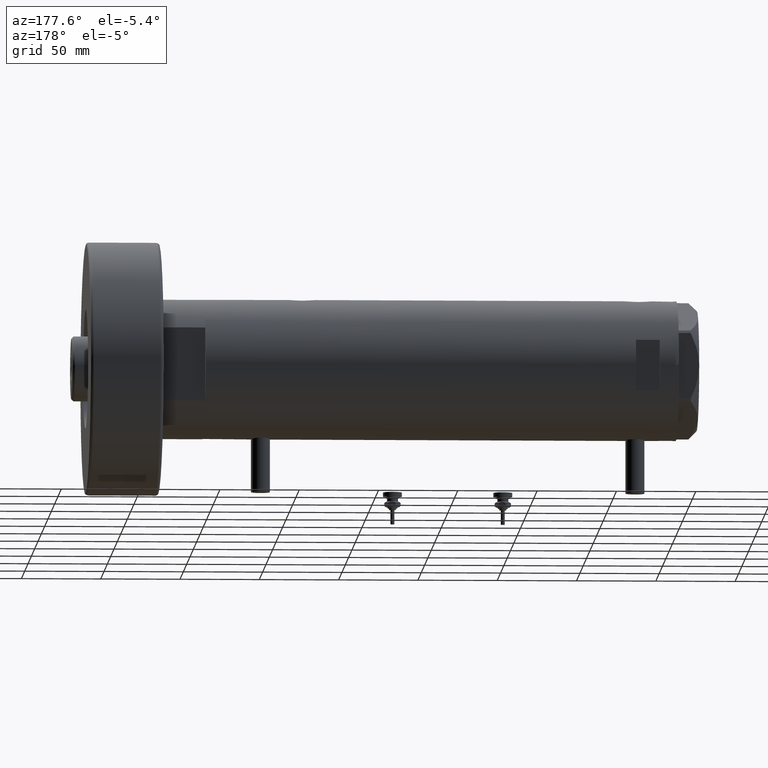
[diagram: clean part render]
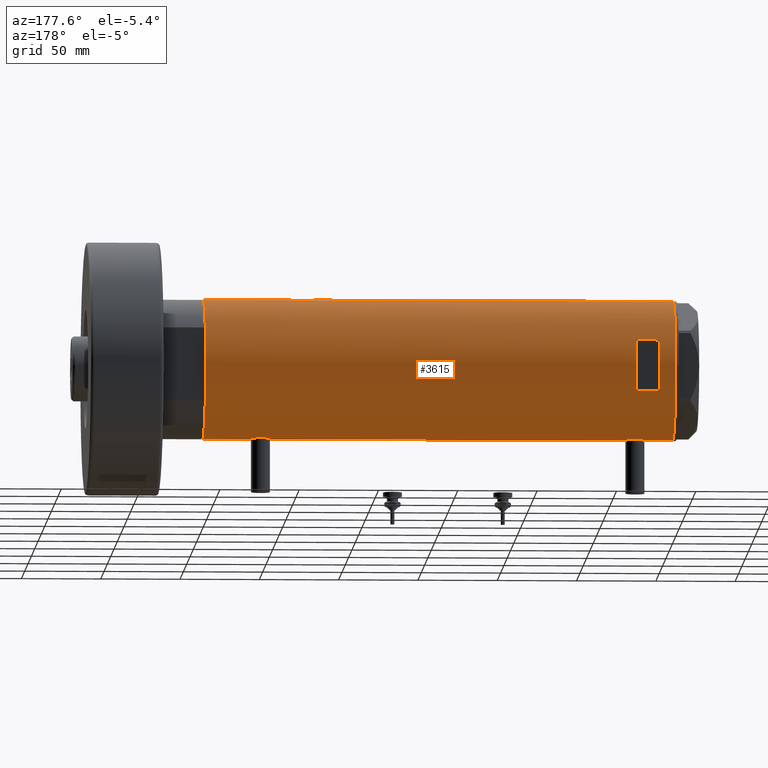
[diagram: same view with one face highlighted and labeled with its STEP entity id]
A machine part, auxiliary view. The second image highlights one B-rep face of the part: STEP entity #3615.
In plain terms, the highlighted cylindrical surface (partial cylindrical patch) has radius 44 mm, axis along (-1, -0, 0).
Its self-contained STEP definition (entity closure, byte-faithful):
#48 = CARTESIAN_POINT ( 'NONE',  ( -43.64133398152736021, 5.607447751852152606, -114.6678604501243512 ) ) ;
#63 = CARTESIAN_POINT ( 'NONE',  ( -43.57657963456318839, 6.089610171536609329, 125.6217853958080894 ) ) ;
#76 = CARTESIAN_POINT ( 'NONE',  ( -43.99413512814552263, 0.8228129877960659311, -118.1090831432582604 ) ) ;
#78 = CARTESIAN_POINT ( 'NONE',  ( 44.00000000000000000, -2.552687571866728611E-15, -96.10000000000000853 ) ) ;
#124 = VERTEX_POINT ( 'NONE', #1070 ) ;
#131 = B_SPLINE_CURVE_WITH_KNOTS ( 'NONE', 3,
 ( #3699, #1826, #1724, #1759, #6146, #1361, #3311, #348, #4241, #820, #792, #2245, #760, #4170, #3763, #4653, #5658, #1236, #2728, #5758, #3219, #5793, #6176, #2277, #314, #252, #2788, #2217, #5168, #5694, #4683, #1268, #3823, #2335, #4202, #2756, #4294, #6245, #6275, #3732, #1859, #6215, #3252, #5200, #1796, #5729, #4710, #3789, #1296, #3281 ),
 .UNSPECIFIED., .F., .F.,
 ( 4, 2, 2, 2, 2, 2, 2, 2, 2, 2, 2, 2, 2, 2, 2, 2, 2, 2, 2, 2, 2, 2, 2, 2, 4 ),
 ( 1.676565531868734773E-18, 0.001960456513248841175, 0.002940684769873264798, 0.003920913026497689288, 0.005881369539746519187, 0.006861597796370934137, 0.007841826052995349086, 0.009802282566244210210, 0.01078251082286863817, 0.01176273907949306613, 0.01274296733611749582, 0.01372319559274192378, 0.01568365210599073981, 0.01764410861923955062, 0.01960456513248837185, 0.02058479338911281889, 0.02156502164573726593, 0.02254524990236171644, 0.02352547815898616002, 0.02548593467223511655, 0.02646616292885961563, 0.02744639118548411472, 0.02940684769873311635, 0.03038707595535761891, 0.03136730421198213187 ),
 .UNSPECIFIED. ) ;
#142 = CARTESIAN_POINT ( 'NONE',  ( -43.55386785759471024, 6.249847571481740971, -111.4894505238204374 ) ) ;
#157 = EDGE_CURVE ( 'NONE', #5611, #1794, #3469, .T. ) ;
#171 = CYLINDRICAL_SURFACE ( 'NONE', #5045, 44.00000000000000000 ) ;
#172 = CARTESIAN_POINT ( 'NONE',  ( -43.67867890111967455, 5.309046579850785541, -115.2042277907602141 ) ) ;
#204 = EDGE_CURVE ( 'NONE', #3201, #2855, #4592, .T. ) ;
#212 = CARTESIAN_POINT ( 'NONE',  ( 42.90786968859020334, 9.742642423712169375, -88.37802296547127412 ) ) ;
#228 = CARTESIAN_POINT ( 'NONE',  ( 44.00000000000000000, -3.917205576288906830E-21, 135.9000000000000341 ) ) ;
#248 = CARTESIAN_POINT ( 'NONE',  ( 43.57657781376908446, 6.094873943596679666, -94.03474301119597101 ) ) ;
#252 = CARTESIAN_POINT ( 'NONE',  ( 42.84850876528984287, 10.00026482975808406, 126.5505830547042621 ) ) ;
#255 = CARTESIAN_POINT ( 'NONE',  ( -43.58221825186232223, 6.049526113783017855, 122.5773702918204293 ) ) ;
#282 = CARTESIAN_POINT ( 'NONE',  ( -43.59867737633044982, 5.931302618788632408, 122.1875050497011301 ) ) ;
#314 = CARTESIAN_POINT ( 'NONE',  ( 42.84863276153905787, 9.999733523508361088, 125.2413009524922245 ) ) ;
#346 = EDGE_CURVE ( 'NONE', #2986, #880, #4062, .T. ) ;
#348 = CARTESIAN_POINT ( 'NONE',  ( 43.77939001959704513, 4.442287752090381403, 116.9169382244084119 ) ) ;
#370 = CARTESIAN_POINT ( 'NONE',  ( 44.00000000000000000, 0.000000000000000000, -148.1999999999999886 ) ) ;
#371 = B_SPLINE_CURVE_WITH_KNOTS ( 'NONE', 3,
 ( #4264, #1823, #3180, #5753, #1792, #1719, #5691, #3249, #3213, #2272, #248, #5196, #788, #2752, #4705, #3695, #1323, #756, #3306, #3759, #847, #4617, #212, #2724, #5725, #1292, #5126, #722, #5734, #829, #3679, #1187, #2672, #4119, #3168, #706, #4635, #5144, #4180, #2709, #4663, #6155, #1251, #771, #5707, #4690, #4216, #1774, #3798, #1437 ),
 .UNSPECIFIED., .F., .F.,
 ( 4, 2, 2, 2, 2, 2, 2, 2, 2, 2, 2, 2, 2, 2, 2, 2, 2, 2, 2, 2, 2, 2, 2, 2, 4 ),
 ( 2.479523669370822448E-18, 0.001960456513248891482, 0.002940684769873340258, 0.003920913026497789035, 0.005881369539746669241, 0.006861597796371108476, 0.007841826052995546845, 0.009802282566244456541, 0.01078251082286890879, 0.01176273907949335930, 0.01274296733611781154, 0.01372319559274226206, 0.01568365210599112838, 0.01764410861923999124, 0.01960456513248885757, 0.02058479338911329073, 0.02156502164573771696, 0.02254524990236214665, 0.02352547815898657982, 0.02548593467223546696, 0.02646616292885991054, 0.02744639118548435758, 0.02940684769873324472, 0.03038707595535769176, 0.03136730421198213881 ),
 .UNSPECIFIED. ) ;
#386 = CARTESIAN_POINT ( 'NONE',  ( -43.83593455218809964, 3.811409182021288533, 129.1701492770350228 ) ) ;
#458 = CARTESIAN_POINT ( 'NONE',  ( -44.00000000000000000, 5.388445781982983516E-15, 117.9500000000000028 ) ) ;
#523 = CARTESIAN_POINT ( 'NONE',  ( -43.59995593514495482, 5.920088975424567579, 126.2141790869178379 ) ) ;
#581 = CARTESIAN_POINT ( 'NONE',  ( -43.55963022497230952, 6.210088036293396563, 125.0164616301742484 ) ) ;
#585 = CARTESIAN_POINT ( 'NONE',  ( 0.000000000000000000, 0.000000000000000000, -148.1999999999999886 ) ) ;
#595 = CARTESIAN_POINT ( 'NONE',  ( -43.87596296923810968, 3.305851531861728976, -117.2080358587625994 ) ) ;
#639 = DIRECTION ( 'NONE',  ( -0.000000000000000000, -0.000000000000000000, -1.000000000000000000 ) ) ;
#645 = CARTESIAN_POINT ( 'NONE',  ( -43.71901936021024682, 4.969830049220625767, 120.3883236230112743 ) ) ;
#706 = CARTESIAN_POINT ( 'NONE',  ( 43.35257020184193522, 7.523219862841656003, -79.50397445915866967 ) ) ;
#722 = CARTESIAN_POINT ( 'NONE',  ( 42.92259096922160921, 9.678247830257127760, -83.49994006971209615 ) ) ;
#755 = DIRECTION ( 'NONE',  ( 0.000000000000000000, 0.000000000000000000, 1.000000000000000000 ) ) ;
#756 = CARTESIAN_POINT ( 'NONE',  ( 43.07598348983507464, 8.971306953823010133, -90.52969423187184361 ) ) ;
#760 = CARTESIAN_POINT ( 'NONE',  ( 43.46520118248736253, 6.843279251446918288, 118.6010167278784024 ) ) ;
#771 = CARTESIAN_POINT ( 'NONE',  ( 43.88561577393361546, 3.228056721358708803, -76.61278334272179791 ) ) ;
#788 = CARTESIAN_POINT ( 'NONE',  ( 43.46520118248735542, 6.843279251446915623, -93.39898327212165441 ) ) ;
#792 = CARTESIAN_POINT ( 'NONE',  ( 43.57657781376909156, 6.094873943596689436, 117.9652569888040858 ) ) ;
#795 = CARTESIAN_POINT ( 'NONE',  ( -43.97181775256599678, 1.624866278047412349, 118.1510708161490442 ) ) ;
#820 = CARTESIAN_POINT ( 'NONE',  ( 43.61291203895921598, 5.829986172017925128, 117.7687128921317452 ) ) ;
#829 = CARTESIAN_POINT ( 'NONE',  ( 43.04652664061920575, 9.111152824375425396, -81.96541990785412679 ) ) ;
#847 = CARTESIAN_POINT ( 'NONE',  ( 42.96879251999280314, 9.470609476412112926, -89.32722899941057904 ) ) ;
#861 = CARTESIAN_POINT ( 'NONE',  ( -43.97068415157984589, 1.617901284326944689, 130.2404512830004251 ) ) ;
#880 = VERTEX_POINT ( 'NONE', #1247 ) ;
#931 = ORIENTED_EDGE ( 'NONE', *, *, #4191, .F. ) ;
#976 = EDGE_CURVE ( 'NONE', #5998, #3330, #371, .T. ) ;
#1010 = CARTESIAN_POINT ( 'NONE',  ( -43.61859254253774054, 5.782454868881351295, -109.5021359910553542 ) ) ;
#1065 = EDGE_CURVE ( 'NONE', #3330, #2882, #4412, .T. ) ;
#1070 = CARTESIAN_POINT ( 'NONE',  ( 15.96871942267132027, 40.99999999999999289, 123.1999999999999886 ) ) ;
#1079 = CARTESIAN_POINT ( 'NONE',  ( -43.58221825186232223, 6.049526113783018744, -113.5226297081795650 ) ) ;
#1084 = CARTESIAN_POINT ( 'NONE',  ( 0.000000000000000000, 0.000000000000000000, 138.1999999999999886 ) ) ;
#1104 = CARTESIAN_POINT ( 'NONE',  ( -43.59995593514495482, 5.920088975424566691, -109.8858209130821848 ) ) ;
#1123 = CARTESIAN_POINT ( 'NONE',  ( -44.00000000000000000, 5.388445916248353619E-15, -148.1999999999999886 ) ) ;
#1140 = VECTOR ( 'NONE', #6062, 1000.000000000000000 ) ;
#1146 = CARTESIAN_POINT ( 'NONE',  ( -43.87596296923809547, 3.305851531861729420, 118.8919641412373522 ) ) ;
#1161 = FACE_OUTER_BOUND ( 'NONE', #4409, .T. ) ;
#1177 = CARTESIAN_POINT ( 'NONE',  ( -43.88883895882798925, 3.130924084324100409, 118.7868754425185216 ) ) ;
#1187 = CARTESIAN_POINT ( 'NONE',  ( 43.13962074468734897, 8.660138848900672315, -81.08910258836064600 ) ) ;
#1207 = CARTESIAN_POINT ( 'NONE',  ( -43.83576802966639008, 3.813209221108460500, 119.2313450964529125 ) ) ;
#1234 = ORIENTED_EDGE ( 'NONE', *, *, #3103, .F. ) ;
#1236 = CARTESIAN_POINT ( 'NONE',  ( 43.07598348983508174, 8.971306953823004804, 121.4703057681281138 ) ) ;
#1245 = VECTOR ( 'NONE', #5311, 1000.000000000000000 ) ;
#1247 = CARTESIAN_POINT ( 'NONE',  ( -44.00000000000000000, 5.388445781982983516E-15, 117.9500000000000028 ) ) ;
#1251 = CARTESIAN_POINT ( 'NONE',  ( 43.80640706382533978, 4.134078575915388853, -76.98867178437912173 ) ) ;
#1268 = CARTESIAN_POINT ( 'NONE',  ( 43.13962074468733476, 8.660138848900681197, 130.9108974116393540 ) ) ;
#1288 = CARTESIAN_POINT ( 'NONE',  ( -44.00000000000000000, 5.388445916248353619E-15, 148.1999999999999886 ) ) ;
#1292 = CARTESIAN_POINT ( 'NONE',  ( 42.84850876528984287, 10.00026482975807873, -85.44941694529576637 ) ) ;
#1296 = CARTESIAN_POINT ( 'NONE',  ( 44.00000000000001421, 0.3269372501759423844, 135.9000000000000625 ) ) ;
#1323 = CARTESIAN_POINT ( 'NONE',  ( 43.13897484505559987, 8.663345277311670145, -91.10529600060513644 ) ) ;
#1361 = CARTESIAN_POINT ( 'NONE',  ( 43.88297407487989688, 3.222431612395376455, 116.4277179797065997 ) ) ;
#1387 = CARTESIAN_POINT ( 'NONE',  ( -44.00000000000000000, 4.742435893011557518E-16, -105.6499999999999915 ) ) ;
#1400 = CARTESIAN_POINT ( 'NONE',  ( -44.00000000000000711, 0.4081702738789175222, 117.9500000000000313 ) ) ;
#1428 = EDGE_CURVE ( 'NONE', #1471, #124, #4589, .T. ) ;
#1437 = CARTESIAN_POINT ( 'NONE',  ( 44.00000000000000000, -3.917104602093038540E-21, -76.10000000000000853 ) ) ;
#1460 = ORIENTED_EDGE ( 'NONE', *, *, #1428, .F. ) ;
#1471 = VERTEX_POINT ( 'NONE', #2127 ) ;
#1473 = ORIENTED_EDGE ( 'NONE', *, *, #5532, .T. ) ;
#1488 = DIRECTION ( 'NONE',  ( 0.000000000000000000, 0.000000000000000000, 1.000000000000000000 ) ) ;
#1515 = LINE ( 'NONE', #2429, #2482 ) ;
#1535 = CARTESIAN_POINT ( 'NONE',  ( -43.67863969133946966, 5.309394106110044476, 127.5037929650255109 ) ) ;
#1552 = CARTESIAN_POINT ( 'NONE',  ( -43.91413175532567692, 2.773555030353453965, -106.2841576163325925 ) ) ;
#1562 = EDGE_CURVE ( 'NONE', #2882, #5611, #131, .T. ) ;
#1569 = EDGE_CURVE ( 'NONE', #3201, #880, #5228, .T. ) ;
#1605 = EDGE_CURVE ( 'NONE', #2324, #2855, #3442, .T. ) ;
#1615 = CARTESIAN_POINT ( 'NONE',  ( -44.00000000000000000, 5.388445916248353619E-15, -148.1999999999999886 ) ) ;
#1653 = CARTESIAN_POINT ( 'NONE',  ( -43.74805001749254529, 4.711035428619386956, -116.0277606412579985 ) ) ;
#1719 = CARTESIAN_POINT ( 'NONE',  ( 43.88297407487990398, 3.222431612395379119, -95.57228202029342867 ) ) ;
#1724 = CARTESIAN_POINT ( 'NONE',  ( 43.98503110884230694, 1.314607393679875225, 115.9652901565444694 ) ) ;
#1733 = VECTOR ( 'NONE', #639, 1000.000000000000000 ) ;
#1759 = CARTESIAN_POINT ( 'NONE',  ( 43.94229162222109863, 2.275476993733910547, 116.1568553577769620 ) ) ;
#1763 = CARTESIAN_POINT ( 'NONE',  ( -43.91315028150558675, 2.769134003554747370, 118.5931738062459573 ) ) ;
#1774 = CARTESIAN_POINT ( 'NONE',  ( 43.99635668041006653, 0.6544833911834552209, -76.11599291522472299 ) ) ;
#1792 = CARTESIAN_POINT ( 'NONE',  ( 43.92466059386730137, 2.593004216484783964, -95.76356669671355348 ) ) ;
#1794 = VERTEX_POINT ( 'NONE', #5984 ) ;
#1796 = CARTESIAN_POINT ( 'NONE',  ( 43.92756755766648524, 2.604528169608123722, 135.5771341190234409 ) ) ;
#1806 = CARTESIAN_POINT ( 'NONE',  ( -43.94507179847653333, 2.206027755801685863, 130.0513152228180047 ) ) ;
#1823 = CARTESIAN_POINT ( 'NONE',  ( 44.00000000000001421, 0.6630566900259825536, -96.09999999999998010 ) ) ;
#1826 = CARTESIAN_POINT ( 'NONE',  ( 44.00000000000001421, 0.6630566900259826646, 115.9000000000000483 ) ) ;
#1845 = DIRECTION ( 'NONE',  ( 0.000000000000000000, 0.000000000000000000, 1.000000000000000000 ) ) ;
#1859 = CARTESIAN_POINT ( 'NONE',  ( 43.71454618729809738, 5.012329428678965471, 134.5593697405831222 ) ) ;
#1954 = LINE ( 'NONE', #3364, #1245 ) ;
#1960 = ORIENTED_EDGE ( 'NONE', *, *, #6231, .F. ) ;
#1965 = CARTESIAN_POINT ( 'NONE',  ( -44.00000000000000000, 3.205170455528113082E-15, 130.4500000000000171 ) ) ;
#1981 = VERTEX_POINT ( 'NONE', #1288 ) ;
#2024 = CARTESIAN_POINT ( 'NONE',  ( -43.83576802966640429, 3.813209221108459168, -116.8686549035471103 ) ) ;
#2049 = CARTESIAN_POINT ( 'NONE',  ( -43.55963022497231663, 6.210088036293396563, -111.0835383698257601 ) ) ;
#2070 = DIRECTION ( 'NONE',  ( 0.000000000000000000, 0.000000000000000000, 1.000000000000000000 ) ) ;
#2076 = AXIS2_PLACEMENT_3D ( 'NONE', #5160, #755, #2239 ) ;
#2079 = CARTESIAN_POINT ( 'NONE',  ( -43.62981559643959883, 5.696090409300652802, -114.4805136541452271 ) ) ;
#2096 = CARTESIAN_POINT ( 'NONE',  ( 15.96871942267132027, 40.99999999999999289, -148.1999999999999886 ) ) ;
#2113 = CARTESIAN_POINT ( 'NONE',  ( -43.95549163632549750, 2.014511215452027937, -117.8305895570497768 ) ) ;
#2127 = CARTESIAN_POINT ( 'NONE',  ( 15.96871942267132027, 40.99999999999999289, 138.1999999999999886 ) ) ;
#2144 = CARTESIAN_POINT ( 'NONE',  ( -43.71938389712227746, 4.966728892888062852, -108.0838554765912960 ) ) ;
#2148 = CARTESIAN_POINT ( 'NONE',  ( -15.96871942267132027, 40.99999999999999289, 123.1999999999999886 ) ) ;
#2154 = CARTESIAN_POINT ( 'NONE',  ( -43.66575107734167460, 5.414026674167574882, 121.0706491196229848 ) ) ;
#2164 = ORIENTED_EDGE ( 'NONE', *, *, #204, .F. ) ;
#2184 = CARTESIAN_POINT ( 'NONE',  ( -43.55382423478828713, 6.250151562062088217, 123.7941047051266281 ) ) ;
#2215 = ORIENTED_EDGE ( 'NONE', *, *, #3388, .F. ) ;
#2217 = CARTESIAN_POINT ( 'NONE',  ( 42.92259096922159500, 9.678247830257124207, 128.5000599302879323 ) ) ;
#2239 = DIRECTION ( 'NONE',  ( 1.000000000000000000, 0.000000000000000000, 0.000000000000000000 ) ) ;
#2245 = CARTESIAN_POINT ( 'NONE',  ( 43.50265731352003939, 6.601850423195601003, 118.3818083270105177 ) ) ;
#2272 = CARTESIAN_POINT ( 'NONE',  ( 43.61291203895921598, 5.829986172017927792, -94.23128710786834006 ) ) ;
#2277 = CARTESIAN_POINT ( 'NONE',  ( 42.86370458161098185, 9.935807968041567406, 124.5909544957013253 ) ) ;
#2324 = VERTEX_POINT ( 'NONE', #1615 ) ;
#2335 = CARTESIAN_POINT ( 'NONE',  ( 43.24261242176996234, 8.130827601038818742, 131.7305518685417383 ) ) ;
#2380 = CIRCLE ( 'NONE', #5994, 44.00000000000000000 ) ;
#2386 = AXIS2_PLACEMENT_3D ( 'NONE', #3195, #2734, #5205 ) ;
#2397 = ORIENTED_EDGE ( 'NONE', *, *, #1065, .F. ) ;
#2429 = CARTESIAN_POINT ( 'NONE',  ( -15.96871942267132027, 40.99999999999999289, -148.1999999999999886 ) ) ;
#2482 = VECTOR ( 'NONE', #1488, 1000.000000000000000 ) ;
#2500 = CARTESIAN_POINT ( 'NONE',  ( -43.74833112883977293, 4.708208586952001617, -107.7694961649112457 ) ) ;
#2532 = CARTESIAN_POINT ( 'NONE',  ( -43.83593455218809254, 3.811409182021277431, -106.9298507229649857 ) ) ;
#2557 = CARTESIAN_POINT ( 'NONE',  ( -43.80687348212602217, 4.128385987736833407, -116.6104874331096255 ) ) ;
#2572 = CARTESIAN_POINT ( 'NONE',  ( -43.64122538274736485, 5.608286354294323317, 126.9661138696334177 ) ) ;
#2589 = CARTESIAN_POINT ( 'NONE',  ( -43.99999999999997158, 0.4081702738789203533, -118.1499999999999631 ) ) ;
#2608 = CARTESIAN_POINT ( 'NONE',  ( -43.80687348212601506, 4.128385987736831630, 119.4895125668903830 ) ) ;
#2636 = CARTESIAN_POINT ( 'NONE',  ( -43.55973179376101001, 6.209370339246233605, 123.3793823294013379 ) ) ;
#2672 = CARTESIAN_POINT ( 'NONE',  ( 43.17306590853065984, 8.492365194390513849, -80.80987467306545113 ) ) ;
#2709 = CARTESIAN_POINT ( 'NONE',  ( 43.68141895191830315, 5.292250119194731539, -77.60895047714808470 ) ) ;
#2724 = CARTESIAN_POINT ( 'NONE',  ( 42.86370458161097474, 9.935807968041563853, -87.40904550429864628 ) ) ;
#2728 = CARTESIAN_POINT ( 'NONE',  ( 43.04663170950396278, 9.110642017076083121, 121.7645249780961052 ) ) ;
#2734 = DIRECTION ( 'NONE',  ( -0.000000000000000000, -0.000000000000000000, 1.000000000000000000 ) ) ;
#2752 = CARTESIAN_POINT ( 'NONE',  ( 43.35294442506072699, 7.532526048221049209, -92.70935414491108872 ) ) ;
#2756 = CARTESIAN_POINT ( 'NONE',  ( 43.35257020184193522, 7.523219862841646233, 132.4960255408413730 ) ) ;
#2788 = CARTESIAN_POINT ( 'NONE',  ( 42.86396777580259965, 9.934664719553397916, 127.2157619902652357 ) ) ;
#2806 = ORIENTED_EDGE ( 'NONE', *, *, #3298, .F. ) ;
#2850 = ORIENTED_EDGE ( 'NONE', *, *, #1569, .T. ) ;
#2855 = VERTEX_POINT ( 'NONE', #6184 ) ;
#2879 = CARTESIAN_POINT ( 'NONE',  ( -43.97068415157983878, 1.617901284326946909, -105.8595487169995266 ) ) ;
#2882 = VERTEX_POINT ( 'NONE', #3228 ) ;
#2981 = CARTESIAN_POINT ( 'NONE',  ( -43.59867737633045692, 5.931302618788633296, -113.9124949502988926 ) ) ;
#2986 = VERTEX_POINT ( 'NONE', #1965 ) ;
#3000 = CARTESIAN_POINT ( 'NONE',  ( -43.58362292239463187, 6.039157555656599285, 125.8226357844804681 ) ) ;
#3017 = CARTESIAN_POINT ( 'NONE',  ( -43.94507179847653333, 2.206027755801677870, -106.0486847771820322 ) ) ;
#3049 = CARTESIAN_POINT ( 'NONE',  ( -43.64122538274737195, 5.608286354294323317, -109.1338861303666192 ) ) ;
#3078 = CARTESIAN_POINT ( 'NONE',  ( -43.88883895882799635, 3.130924084324101297, -117.3131245574814727 ) ) ;
#3083 = DIRECTION ( 'NONE',  ( -0.000000000000000000, -0.000000000000000000, -1.000000000000000000 ) ) ;
#3103 = EDGE_CURVE ( 'NONE', #3921, #1471, #5454, .T. ) ;
#3159 = CARTESIAN_POINT ( 'NONE',  ( -43.95549163632550460, 2.014511215452026160, 118.2694104429502460 ) ) ;
#3160 = VERTEX_POINT ( 'NONE', #2148 ) ;
#3168 = CARTESIAN_POINT ( 'NONE',  ( 43.27871541412905287, 7.937063204555986573, -80.00825002753971660 ) ) ;
#3173 = VECTOR ( 'NONE', #4810, 1000.000000000000000 ) ;
#3180 = CARTESIAN_POINT ( 'NONE',  ( 43.98503110884232115, 1.314607393679875669, -96.03470984345551642 ) ) ;
#3188 = CARTESIAN_POINT ( 'NONE',  ( -43.92459115390705904, 2.581892149020998506, 118.5045417292665491 ) ) ;
#3195 = CARTESIAN_POINT ( 'NONE',  ( 0.000000000000000000, 0.000000000000000000, 123.1999999999999744 ) ) ;
#3201 = VERTEX_POINT ( 'NONE', #4291 ) ;
#3213 = CARTESIAN_POINT ( 'NONE',  ( 43.71659050864931828, 5.015880325000607876, -94.77566825963822339 ) ) ;
#3219 = CARTESIAN_POINT ( 'NONE',  ( 42.96879251999278893, 9.470609476412109373, 122.6727710005894352 ) ) ;
#3222 = CARTESIAN_POINT ( 'NONE',  ( -43.55386785759471735, 6.249847571481741859, 124.6105494761795569 ) ) ;
#3228 = CARTESIAN_POINT ( 'NONE',  ( 44.00000000000000000, -1.726036355082439716E-15, 115.9000000000000199 ) ) ;
#3249 = CARTESIAN_POINT ( 'NONE',  ( 43.77939001959703802, 4.442287752090381403, -95.08306177559161654 ) ) ;
#3252 = CARTESIAN_POINT ( 'NONE',  ( 43.80640706382533267, 4.134078575915394183, 135.0113282156208641 ) ) ;
#3281 = CARTESIAN_POINT ( 'NONE',  ( 44.00000000000000000, -3.917205576288906830E-21, 135.9000000000000341 ) ) ;
#3298 = EDGE_CURVE ( 'NONE', #1794, #1981, #5245, .T. ) ;
#3306 = CARTESIAN_POINT ( 'NONE',  ( 43.04663170950394857, 9.110642017076081345, -90.23547502190392322 ) ) ;
#3311 = CARTESIAN_POINT ( 'NONE',  ( 43.85884410404901246, 3.534688330930383593, 116.5398019124966424 ) ) ;
#3324 = CARTESIAN_POINT ( 'NONE',  ( -43.91413175532566981, 2.773555030353461515, 129.8158423836674729 ) ) ;
#3330 = VERTEX_POINT ( 'NONE', #5221 ) ;
#3346 = DIRECTION ( 'NONE',  ( 0.000000000000000000, 0.000000000000000000, 1.000000000000000000 ) ) ;
#3364 = CARTESIAN_POINT ( 'NONE',  ( 44.00000000000000000, 0.000000000000000000, -148.1999999999999886 ) ) ;
#3369 = CARTESIAN_POINT ( 'NONE',  ( -43.99417607942194763, 0.8200150578638748522, -105.6906332748326207 ) ) ;
#3388 = EDGE_CURVE ( 'NONE', #3160, #3921, #1515, .T. ) ;
#3409 = DIRECTION ( 'NONE',  ( 0.000000000000000000, 0.000000000000000000, 1.000000000000000000 ) ) ;
#3442 = LINE ( 'NONE', #4392, #5543 ) ;
#3469 = LINE ( 'NONE', #370, #3173 ) ;
#3528 = CARTESIAN_POINT ( 'NONE',  ( -43.55382423478827292, 6.250151562062086441, -112.3058952948734088 ) ) ;
#3559 = CARTESIAN_POINT ( 'NONE',  ( -43.88968326835893663, 3.132363423941621150, -106.4762076764352088 ) ) ;
#3615 = ADVANCED_FACE ( 'NONE', ( #4063, #1161 ), #171, .T. ) ;
#3654 = DIRECTION ( 'NONE',  ( 0.000000000000000000, 0.000000000000000000, 1.000000000000000000 ) ) ;
#3679 = CARTESIAN_POINT ( 'NONE',  ( 43.07641822757289418, 8.969229373860567733, -81.66603764209828853 ) ) ;
#3695 = CARTESIAN_POINT ( 'NONE',  ( 43.17277162440355198, 8.493905080221260562, -91.38787035108497037 ) ) ;
#3699 = CARTESIAN_POINT ( 'NONE',  ( 44.00000000000000000, -1.726036355082439716E-15, 115.9000000000000199 ) ) ;
#3732 = CARTESIAN_POINT ( 'NONE',  ( 43.68141895191831736, 5.292250119194742197, 134.3910495228520006 ) ) ;
#3759 = CARTESIAN_POINT ( 'NONE',  ( 42.99303682946561622, 9.360292926890510401, -89.63424220207205906 ) ) ;
#3763 = CARTESIAN_POINT ( 'NONE',  ( 43.27822890220284791, 7.945655169171514487, 119.7927461671070830 ) ) ;
#3789 = CARTESIAN_POINT ( 'NONE',  ( 43.99635668041006653, 0.6544833911834624374, 135.8840070847753623 ) ) ;
#3798 = CARTESIAN_POINT ( 'NONE',  ( 44.00000000000002132, 0.3269372501759363336, -76.10000000000002274 ) ) ;
#3823 = CARTESIAN_POINT ( 'NONE',  ( 43.17306590853067405, 8.492365194390501415, 131.1901253269345773 ) ) ;
#3836 = CARTESIAN_POINT ( 'NONE',  ( -43.80646232387288563, 4.132500855894035929, 128.9064558540335668 ) ) ;
#3904 = ORIENTED_EDGE ( 'NONE', *, *, #1605, .T. ) ;
#3921 = VERTEX_POINT ( 'NONE', #4833 ) ;
#3977 = CARTESIAN_POINT ( 'NONE',  ( -43.92459115390705193, 2.581892149020998950, -117.5954582707334595 ) ) ;
#3996 = LINE ( 'NONE', #1123, #1140 ) ;
#4014 = EDGE_CURVE ( 'NONE', #5635, #2324, #2380, .T. ) ;
#4062 = B_SPLINE_CURVE_WITH_KNOTS ( 'NONE', 3,
 ( #5275, #6356, #4341, #5367, #861, #6324, #1806, #3324, #4794, #386, #3836, #5301, #5839, #1535, #5472, #2572, #5907, #523, #3000, #63, #581, #3222, #2184, #2636, #255, #282, #6051, #5048, #2154, #5568, #645, #6181, #2608, #1207, #1146, #1177, #1763, #3188, #3159, #795, #4752, #1400, #458 ),
 .UNSPECIFIED., .F., .F.,
 ( 4, 2, 2, 2, 2, 2, 2, 2, 1, 2, 2, 2, 2, 2, 2, 2, 2, 2, 2, 2, 2, 4 ),
 ( 3.114226524098576417E-18, 0.001222818171749707637, 0.001834227257624559829, 0.002445636343499412238, 0.003668454515249116622, 0.004891272686998821874, 0.006114090858748525391, 0.006725499944623378884, 0.007336909030498230642, 0.007948318116373082401, 0.008559727202247935027, 0.009782545373997636809, 0.01100536354574729869, 0.01222818171749695884, 0.01283959080337180973, 0.01345099988924666062, 0.01467381806099635894, 0.01589663623274606072, 0.01650804531862090987, 0.01711945440449575903, 0.01834227257624546428, 0.01956509074799516260 ),
 .UNSPECIFIED. ) ;
#4063 = FACE_BOUND ( 'NONE', #6246, .T. ) ;
#4089 = CARTESIAN_POINT ( 'NONE',  ( 0.000000000000000000, 0.000000000000000000, -148.1999999999999886 ) ) ;
#4092 = VECTOR ( 'NONE', #1845, 1000.000000000000000 ) ;
#4109 = AXIS2_PLACEMENT_3D ( 'NONE', #1084, #3083, #5494 ) ;
#4119 = CARTESIAN_POINT ( 'NONE',  ( 43.24261242176995523, 8.130827601038827623, -80.26944813145831858 ) ) ;
#4170 = CARTESIAN_POINT ( 'NONE',  ( 43.35294442506074120, 7.532526048221051873, 119.2906458550888829 ) ) ;
#4180 = CARTESIAN_POINT ( 'NONE',  ( 43.57805684119164624, 6.103282219787162788, -78.15183798352141764 ) ) ;
#4191 = EDGE_CURVE ( 'NONE', #124, #3160, #6202, .T. ) ;
#4202 = CARTESIAN_POINT ( 'NONE',  ( 43.27871541412905287, 7.937063204555979468, 131.9917499724603545 ) ) ;
#4216 = CARTESIAN_POINT ( 'NONE',  ( 43.98169492814104586, 1.310824514239765426, -76.18080219619319848 ) ) ;
#4241 = CARTESIAN_POINT ( 'NONE',  ( 43.71659050864932539, 5.015880325000607876, 117.2243317403618477 ) ) ;
#4264 = CARTESIAN_POINT ( 'NONE',  ( 44.00000000000000000, -2.552687571866728611E-15, -96.10000000000000853 ) ) ;
#4287 = ORIENTED_EDGE ( 'NONE', *, *, #157, .F. ) ;
#4291 = CARTESIAN_POINT ( 'NONE',  ( -44.00000000000000000, 4.742435893011557518E-16, -105.6499999999999915 ) ) ;
#4294 = CARTESIAN_POINT ( 'NONE',  ( 43.39051256276903956, 7.301963662770305064, 132.7402446821294575 ) ) ;
#4341 = CARTESIAN_POINT ( 'NONE',  ( -43.99417607942194763, 0.8200150578638757404, 130.4093667251674162 ) ) ;
#4369 = ORIENTED_EDGE ( 'NONE', *, *, #4014, .T. ) ;
#4392 = CARTESIAN_POINT ( 'NONE',  ( -44.00000000000000000, 5.388445916248353619E-15, -148.1999999999999886 ) ) ;
#4409 = EDGE_LOOP ( 'NONE', ( #4369, #3904, #2164, #2850, #4508, #1473, #2806, #4287, #5140, #2397, #5790, #1960 ) ) ;
#4412 = LINE ( 'NONE', #6261, #4092 ) ;
#4456 = CARTESIAN_POINT ( 'NONE',  ( -43.57657963456318839, 6.089610171536606664, -110.4782146041918622 ) ) ;
#4490 = CARTESIAN_POINT ( 'NONE',  ( -43.67863969133946966, 5.309394106110037370, -108.5962070349745403 ) ) ;
#4508 = ORIENTED_EDGE ( 'NONE', *, *, #346, .F. ) ;
#4578 = CARTESIAN_POINT ( 'NONE',  ( -44.00000000000000000, 5.388445781982983516E-15, -118.1500000000000057 ) ) ;
#4589 = LINE ( 'NONE', #2096, #1733 ) ;
#4592 = B_SPLINE_CURVE_WITH_KNOTS ( 'NONE', 3,
 ( #1387, #6372, #3369, #5315, #2879, #5977, #3017, #1552, #3559, #2532, #4979, #2500, #2144, #4490, #5005, #3049, #1010, #1104, #4941, #4456, #2049, #142, #3528, #5490, #1079, #2981, #2079, #48, #6071, #172, #5452, #1653, #2557, #2024, #595, #3078, #5032, #3977, #2113, #5946, #76, #2589, #4578 ),
 .UNSPECIFIED., .F., .F.,
 ( 4, 2, 2, 2, 2, 2, 2, 2, 1, 2, 2, 2, 2, 2, 2, 2, 2, 2, 2, 2, 2, 4 ),
 ( 4.607873388256435088E-19, 0.001222818171749670340, 0.001834227257624505619, 0.002445636343499341114, 0.003668454515249027284, 0.004891272686998713454, 0.006114090858748398756, 0.006725499944623259188, 0.007336909030498119620, 0.007948318116372978318, 0.008559727202247837882, 0.009782545373997518848, 0.01100536354574719981, 0.01222818171749687904, 0.01283959080337173861, 0.01345099988924659644, 0.01467381806099631383, 0.01589663623274603296, 0.01650804531862088906, 0.01711945440449574862, 0.01834227257624546428, 0.01956509074799517994 ),
 .UNSPECIFIED. ) ;
#4617 = CARTESIAN_POINT ( 'NONE',  ( 42.92624534982630280, 9.661626915142804251, -88.70008004144708025 ) ) ;
#4631 = CARTESIAN_POINT ( 'NONE',  ( 44.00000000000000000, 0.000000000000000000, -148.1999999999999886 ) ) ;
#4635 = CARTESIAN_POINT ( 'NONE',  ( 43.39051256276903246, 7.301963662770312169, -79.25975531787059936 ) ) ;
#4653 = CARTESIAN_POINT ( 'NONE',  ( 43.17277162440354488, 8.493905080221260562, 120.6121296489150723 ) ) ;
#4663 = CARTESIAN_POINT ( 'NONE',  ( 43.71454618729809027, 5.012329428678959253, -77.44063025941690626 ) ) ;
#4683 = CARTESIAN_POINT ( 'NONE',  ( 43.07641822757289418, 8.969229373860580168, 130.3339623579017257 ) ) ;
#4690 = CARTESIAN_POINT ( 'NONE',  ( 43.97062489912107708, 1.639461988184795826, -76.22985373334013559 ) ) ;
#4705 = CARTESIAN_POINT ( 'NONE',  ( 43.27822890220284791, 7.945655169171514487, -92.20725383289293120 ) ) ;
#4710 = CARTESIAN_POINT ( 'NONE',  ( 43.98169492814102455, 1.310824514239774530, 135.8191978038068441 ) ) ;
#4748 = CARTESIAN_POINT ( 'NONE',  ( -44.00000000000000000, 5.388445916248353619E-15, -148.1999999999999886 ) ) ;
#4752 = CARTESIAN_POINT ( 'NONE',  ( -43.99413512814552973, 0.8228129877960675964, 117.9909168567418050 ) ) ;
#4794 = CARTESIAN_POINT ( 'NONE',  ( -43.88968326835894374, 3.132363423941633140, 129.6237923235648282 ) ) ;
#4810 = DIRECTION ( 'NONE',  ( 0.000000000000000000, 0.000000000000000000, 1.000000000000000000 ) ) ;
#4833 = CARTESIAN_POINT ( 'NONE',  ( -15.96871942267132027, 40.99999999999999289, 138.1999999999999886 ) ) ;
#4941 = CARTESIAN_POINT ( 'NONE',  ( -43.58362292239462477, 6.039157555656595733, -110.2773642155195688 ) ) ;
#4979 = CARTESIAN_POINT ( 'NONE',  ( -43.80646232387288563, 4.132500855894024383, -107.1935441459664275 ) ) ;
#4996 = DIRECTION ( 'NONE',  ( 1.000000000000000000, 0.000000000000000000, 0.000000000000000000 ) ) ;
#5005 = CARTESIAN_POINT ( 'NONE',  ( -43.66555354895124452, 5.415612800338318600, -108.7734364282244712 ) ) ;
#5032 = CARTESIAN_POINT ( 'NONE',  ( -43.91315028150560096, 2.769134003554746482, -117.5068261937540370 ) ) ;
#5045 = AXIS2_PLACEMENT_3D ( 'NONE', #4089, #3654, #5613 ) ;
#5048 = CARTESIAN_POINT ( 'NONE',  ( -43.64133398152736021, 5.607447751852150830, 121.4321395498756573 ) ) ;
#5126 = CARTESIAN_POINT ( 'NONE',  ( 42.86396777580259254, 9.934664719553399692, -84.78423800973480695 ) ) ;
#5140 = ORIENTED_EDGE ( 'NONE', *, *, #1562, .F. ) ;
#5144 = CARTESIAN_POINT ( 'NONE',  ( 43.50382207688845426, 6.605942769308308371, -78.56395311161780626 ) ) ;
#5160 = CARTESIAN_POINT ( 'NONE',  ( 0.000000000000000000, 0.000000000000000000, 148.1999999999999886 ) ) ;
#5168 = CARTESIAN_POINT ( 'NONE',  ( 42.96547725528407824, 9.488625330801086832, 129.1245034721107743 ) ) ;
#5196 = CARTESIAN_POINT ( 'NONE',  ( 43.50265731352003939, 6.601850423195591233, -93.61819167298956756 ) ) ;
#5200 = CARTESIAN_POINT ( 'NONE',  ( 43.88561577393363677, 3.228056721358719017, 135.3872166572783158 ) ) ;
#5205 = DIRECTION ( 'NONE',  ( -1.000000000000000000, -8.881784197001252323E-16, 0.000000000000000000 ) ) ;
#5221 = CARTESIAN_POINT ( 'NONE',  ( 44.00000000000000000, -3.917104602093038540E-21, -76.10000000000000853 ) ) ;
#5228 = LINE ( 'NONE', #4748, #5866 ) ;
#5245 = CIRCLE ( 'NONE', #2076, 44.00000000000000000 ) ;
#5275 = CARTESIAN_POINT ( 'NONE',  ( -44.00000000000000000, 3.205170455528113082E-15, 130.4500000000000171 ) ) ;
#5301 = CARTESIAN_POINT ( 'NONE',  ( -43.74833112883975872, 4.708208586952010499, 128.3305038350887060 ) ) ;
#5311 = DIRECTION ( 'NONE',  ( 0.000000000000000000, 0.000000000000000000, 1.000000000000000000 ) ) ;
#5315 = CARTESIAN_POINT ( 'NONE',  ( -43.97754480947185129, 1.419697478855583617, -105.8099672394792066 ) ) ;
#5367 = CARTESIAN_POINT ( 'NONE',  ( -43.97754480947187261, 1.419697478855583839, 130.2900327605207451 ) ) ;
#5452 = CARTESIAN_POINT ( 'NONE',  ( -43.71901936021023971, 4.969830049220626655, -115.7116763769886916 ) ) ;
#5454 = CIRCLE ( 'NONE', #4109, 44.00000000000000000 ) ;
#5472 = CARTESIAN_POINT ( 'NONE',  ( -43.66555354895123742, 5.415612800338316823, 127.3265635717755515 ) ) ;
#5490 = CARTESIAN_POINT ( 'NONE',  ( -43.55973179376100290, 6.209370339246232717, -112.7206176705986849 ) ) ;
#5494 = DIRECTION ( 'NONE',  ( 1.000000000000000000, -8.881784197001252323E-16, 0.000000000000000000 ) ) ;
#5532 = EDGE_CURVE ( 'NONE', #2986, #1981, #3996, .T. ) ;
#5543 = VECTOR ( 'NONE', #3409, 1000.000000000000000 ) ;
#5568 = CARTESIAN_POINT ( 'NONE',  ( -43.67867890111968165, 5.309046579850784653, 120.8957722092397660 ) ) ;
#5611 = VERTEX_POINT ( 'NONE', #228 ) ;
#5613 = DIRECTION ( 'NONE',  ( 1.000000000000000000, 0.000000000000000000, 0.000000000000000000 ) ) ;
#5635 = VERTEX_POINT ( 'NONE', #4631 ) ;
#5658 = CARTESIAN_POINT ( 'NONE',  ( 43.13897484505559277, 8.663345277311664816, 120.8947039993948920 ) ) ;
#5691 = CARTESIAN_POINT ( 'NONE',  ( 43.85884410404901956, 3.534688330930385369, -95.46019808750335756 ) ) ;
#5694 = CARTESIAN_POINT ( 'NONE',  ( 43.04652664061920575, 9.111152824375430725, 130.0345800921458874 ) ) ;
#5707 = CARTESIAN_POINT ( 'NONE',  ( 43.92756755766650656, 2.604528169608118393, -76.42286588097658750 ) ) ;
#5725 = CARTESIAN_POINT ( 'NONE',  ( 42.84863276153905076, 9.999733523508359312, -86.75869904750777550 ) ) ;
#5729 = CARTESIAN_POINT ( 'NONE',  ( 43.97062489912107708, 1.639461988184804486, 135.7701462666599070 ) ) ;
#5734 = CARTESIAN_POINT ( 'NONE',  ( 42.96547725528408535, 9.488625330801085056, -82.87549652788929677 ) ) ;
#5753 = CARTESIAN_POINT ( 'NONE',  ( 43.94229162222109863, 2.275476993733910991, -95.84314464222305219 ) ) ;
#5758 = CARTESIAN_POINT ( 'NONE',  ( 42.99303682946561622, 9.360292926890506848, 122.3657577979279836 ) ) ;
#5790 = ORIENTED_EDGE ( 'NONE', *, *, #976, .F. ) ;
#5793 = CARTESIAN_POINT ( 'NONE',  ( 42.92624534982631701, 9.661626915142806027, 123.2999199585529482 ) ) ;
#5839 = CARTESIAN_POINT ( 'NONE',  ( -43.71938389712227035, 4.966728892888069069, 128.0161445234087125 ) ) ;
#5866 = VECTOR ( 'NONE', #3346, 1000.000000000000000 ) ;
#5907 = CARTESIAN_POINT ( 'NONE',  ( -43.61859207403892214, 5.782454990768616021, 126.5978640851534180 ) ) ;
#5946 = CARTESIAN_POINT ( 'NONE',  ( -43.97181775256600389, 1.624866278047415680, -117.9489291838509502 ) ) ;
#5977 = CARTESIAN_POINT ( 'NONE',  ( -43.95446647384543581, 2.010857111636599637, -105.9787577363606346 ) ) ;
#5984 = CARTESIAN_POINT ( 'NONE',  ( 44.00000000000000000, 0.000000000000000000, 148.1999999999999886 ) ) ;
#5994 = AXIS2_PLACEMENT_3D ( 'NONE', #585, #2070, #4996 ) ;
#5998 = VERTEX_POINT ( 'NONE', #78 ) ;
#6051 = CARTESIAN_POINT ( 'NONE',  ( -43.62981559643957752, 5.696090409300651025, 121.6194863458547673 ) ) ;
#6062 = DIRECTION ( 'NONE',  ( 0.000000000000000000, 0.000000000000000000, 1.000000000000000000 ) ) ;
#6071 = CARTESIAN_POINT ( 'NONE',  ( -43.66575107734168171, 5.414026674167576658, -115.0293508803769811 ) ) ;
#6146 = CARTESIAN_POINT ( 'NONE',  ( 43.92466059386730848, 2.593004216484782631, 116.2364333032864891 ) ) ;
#6155 = CARTESIAN_POINT ( 'NONE',  ( 43.77712723341632284, 4.432620652875495892, -77.13004990240027325 ) ) ;
#6176 = CARTESIAN_POINT ( 'NONE',  ( 42.90786968859020334, 9.742642423712167599, 123.6219770345287543 ) ) ;
#6181 = CARTESIAN_POINT ( 'NONE',  ( -43.74805001749256661, 4.711035428619386956, 120.0722393587420669 ) ) ;
#6184 = CARTESIAN_POINT ( 'NONE',  ( -44.00000000000000000, 5.388445781982983516E-15, -118.1500000000000057 ) ) ;
#6202 = CIRCLE ( 'NONE', #2386, 44.00000000000000000 ) ;
#6215 = CARTESIAN_POINT ( 'NONE',  ( 43.77712723341632994, 4.432620652875505662, 134.8699500975996557 ) ) ;
#6231 = EDGE_CURVE ( 'NONE', #5635, #5998, #1954, .T. ) ;
#6245 = CARTESIAN_POINT ( 'NONE',  ( 43.50382207688847558, 6.605942769308297713, 133.4360468883822932 ) ) ;
#6246 = EDGE_LOOP ( 'NONE', ( #931, #1460, #1234, #2215 ) ) ;
#6261 = CARTESIAN_POINT ( 'NONE',  ( 44.00000000000000000, 0.000000000000000000, -148.1999999999999886 ) ) ;
#6275 = CARTESIAN_POINT ( 'NONE',  ( 43.57805684119163914, 6.103282219787171670, 133.8481620164786534 ) ) ;
#6324 = CARTESIAN_POINT ( 'NONE',  ( -43.95446647384545003, 2.010857111636596084, 130.1212422636393455 ) ) ;
#6356 = CARTESIAN_POINT ( 'NONE',  ( -44.00000000000001421, 0.4135148353567998369, 130.4500000000000171 ) ) ;
#6372 = CARTESIAN_POINT ( 'NONE',  ( -44.00000000000000711, 0.4135148353567996149, -105.6499999999999773 ) ) ;